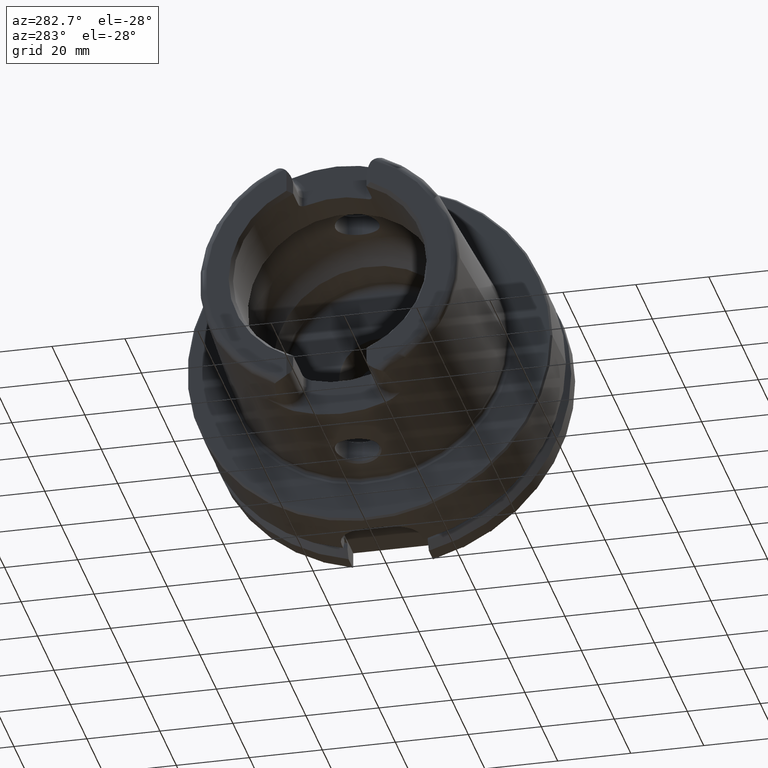
[diagram: clean part render]
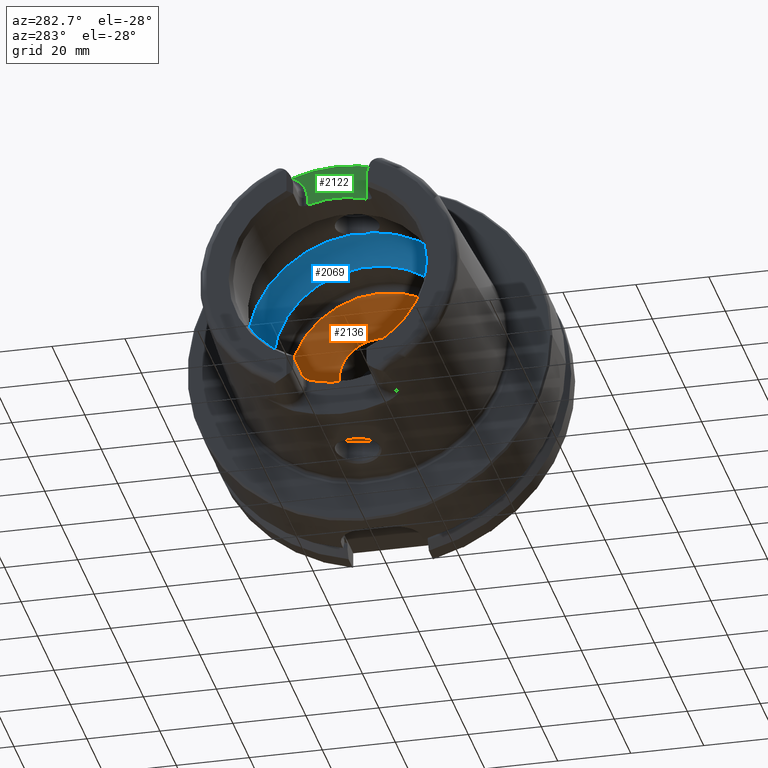
[diagram: same view with three faces highlighted in distinct colors, each labeled with its STEP entity id]
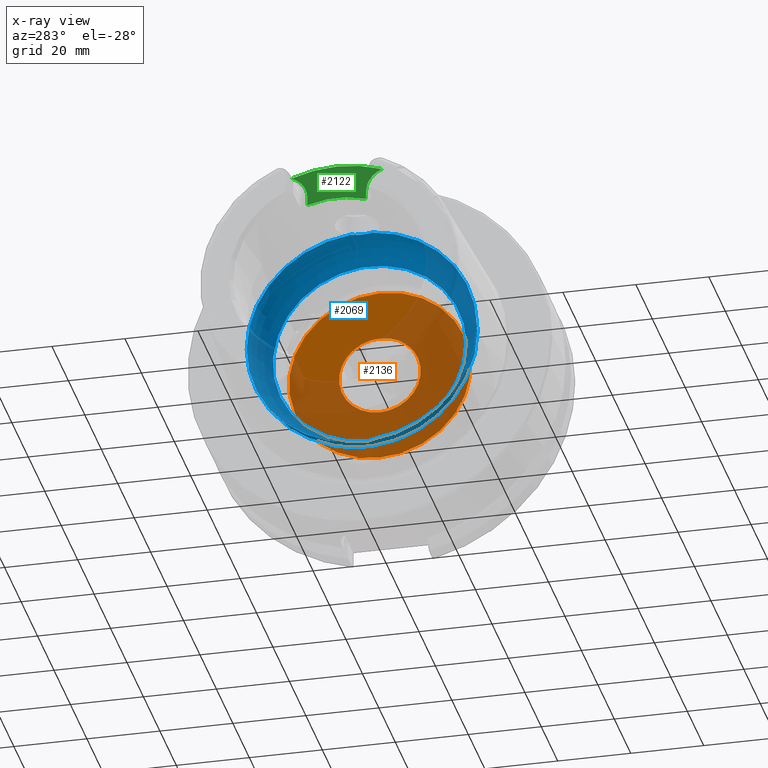
[diagram: x-ray of the same camera — body ghosted, the three highlighted faces saturated]
A machine part, auxiliary view with three faces highlighted in distinct colors.
The next image is the same camera in x-ray (body ghosted, the three faces saturated) — at least one of them is partly hidden behind the body in this view.
Their STEP definitions:

[orange] entity #2136 — the highlighted planar face has unit normal (1, 0, 0).
#97=FACE_BOUND('',#454,.T.);
#134=PLANE('',#2409);
#318=FACE_OUTER_BOUND('',#453,.T.);
#453=EDGE_LOOP('',(#1934));
#454=EDGE_LOOP('',(#1935));
#799=CIRCLE('',#2398,11.188101);
#806=CIRCLE('',#2410,24.9);
#1021=VERTEX_POINT('',#4562);
#1027=VERTEX_POINT('',#4582);
#1328=EDGE_CURVE('',#1021,#1021,#799,.T.);
#1337=EDGE_CURVE('',#1027,#1027,#806,.T.);
#1934=ORIENTED_EDGE('',*,*,#1337,.T.);
#1935=ORIENTED_EDGE('',*,*,#1328,.T.);
#2136=ADVANCED_FACE('',(#318,#97),#134,.F.);
#2398=AXIS2_PLACEMENT_3D('',#4563,#2991,#2992);
#2409=AXIS2_PLACEMENT_3D('',#4581,#3015,#3016);
#2410=AXIS2_PLACEMENT_3D('',#4583,#3017,#3018);
#2991=DIRECTION('center_axis',(1.,0.,0.));
#2992=DIRECTION('ref_axis',(0.,0.,1.));
#3015=DIRECTION('center_axis',(1.,0.,0.));
#3016=DIRECTION('ref_axis',(0.,0.,-1.));
#3017=DIRECTION('center_axis',(-1.,0.,0.));
#3018=DIRECTION('ref_axis',(0.,0.,1.));
#4562=CARTESIAN_POINT('',(12.5,-1.37014720781873E-15,-11.188101));
#4563=CARTESIAN_POINT('Origin',(12.5,0.,0.));
#4581=CARTESIAN_POINT('Origin',(12.5,24.9,0.));
#4582=CARTESIAN_POINT('',(12.5,-3.04937052987691E-15,-24.9));
#4583=CARTESIAN_POINT('Origin',(12.5,0.,0.));

[blue] entity #2069 — the highlighted toroidal blend (fillet) surface has major radius 19.5 mm and minor (blend) radius 12 mm.
#48=B_SPLINE_CURVE_WITH_KNOTS('',3,(#3683,#3684,#3685,#3686,#3687,#3688,
#3689,#3690,#3691,#3692),.UNSPECIFIED.,.F.,.F.,(4,2,2,2,4),(-0.606113644645353,
-0.532141714710631,-0.407956541554012,-0.344441109025195,-0.303157612487306),
 .UNSPECIFIED.);
#50=B_SPLINE_CURVE_WITH_KNOTS('',3,(#3725,#3726,#3727,#3728,#3729,#3730,
#3731,#3732,#3733,#3734),.UNSPECIFIED.,.F.,.F.,(4,2,2,2,4),(-0.303157612487306,
-0.297161587155601,-0.247817233363509,-0.174446982686599,0.),
 .UNSPECIFIED.);
#53=B_SPLINE_CURVE_WITH_KNOTS('',3,(#3875,#3876,#3877,#3878,#3879,#3880,
#3881,#3882,#3883,#3884),.UNSPECIFIED.,.F.,.F.,(4,2,2,2,4),(-0.606113644645388,
-0.532141714710621,-0.407956541553997,-0.344441109025146,-0.303157612487227),
 .UNSPECIFIED.);
#55=B_SPLINE_CURVE_WITH_KNOTS('',3,(#3917,#3918,#3919,#3920,#3921,#3922,
#3923,#3924,#3925,#3926),.UNSPECIFIED.,.F.,.F.,(4,2,2,2,4),(-0.303157612487227,
-0.297161587155532,-0.247817233363497,-0.174446982686607,0.),
 .UNSPECIFIED.);
#143=TOROIDAL_SURFACE('',#2278,19.5,12.);
#251=FACE_OUTER_BOUND('',#383,.T.);
#383=EDGE_LOOP('',(#1569,#1570,#1571,#1572,#1573,#1574,#1575,#1576,#1577,
#1578,#1579));
#737=CIRCLE('',#2273,31.5);
#740=CIRCLE('',#2276,31.5);
#741=CIRCLE('',#2277,31.5);
#742=CIRCLE('',#2279,26.5);
#743=CIRCLE('',#2280,26.5);
#744=CIRCLE('',#2281,12.);
#917=VERTEX_POINT('',#3680);
#918=VERTEX_POINT('',#3682);
#919=VERTEX_POINT('',#3693);
#922=VERTEX_POINT('',#3873);
#923=VERTEX_POINT('',#3874);
#924=VERTEX_POINT('',#3885);
#925=VERTEX_POINT('',#3929);
#928=VERTEX_POINT('',#3939);
#929=VERTEX_POINT('',#3940);
#1157=EDGE_CURVE('',#918,#917,#48,.T.);
#1159=EDGE_CURVE('',#917,#919,#50,.T.);
#1163=EDGE_CURVE('',#922,#923,#53,.T.);
#1165=EDGE_CURVE('',#923,#924,#55,.T.);
#1167=EDGE_CURVE('',#925,#922,#737,.T.);
#1171=EDGE_CURVE('',#919,#925,#740,.T.);
#1172=EDGE_CURVE('',#924,#918,#741,.T.);
#1173=EDGE_CURVE('',#928,#929,#742,.T.);
#1174=EDGE_CURVE('',#929,#928,#743,.T.);
#1175=EDGE_CURVE('',#929,#917,#744,.T.);
#1569=ORIENTED_EDGE('',*,*,#1173,.F.);
#1570=ORIENTED_EDGE('',*,*,#1174,.F.);
#1571=ORIENTED_EDGE('',*,*,#1175,.T.);
#1572=ORIENTED_EDGE('',*,*,#1159,.T.);
#1573=ORIENTED_EDGE('',*,*,#1171,.T.);
#1574=ORIENTED_EDGE('',*,*,#1167,.T.);
#1575=ORIENTED_EDGE('',*,*,#1163,.T.);
#1576=ORIENTED_EDGE('',*,*,#1165,.T.);
#1577=ORIENTED_EDGE('',*,*,#1172,.T.);
#1578=ORIENTED_EDGE('',*,*,#1157,.T.);
#1579=ORIENTED_EDGE('',*,*,#1175,.F.);
#2069=ADVANCED_FACE('',(#251),#143,.F.);
#2273=AXIS2_PLACEMENT_3D('',#3930,#2683,#2684);
#2276=AXIS2_PLACEMENT_3D('',#3936,#2690,#2691);
#2277=AXIS2_PLACEMENT_3D('',#3937,#2692,#2693);
#2278=AXIS2_PLACEMENT_3D('',#3938,#2694,#2695);
#2279=AXIS2_PLACEMENT_3D('',#3941,#2696,#2697);
#2280=AXIS2_PLACEMENT_3D('',#3942,#2698,#2699);
#2281=AXIS2_PLACEMENT_3D('',#3943,#2700,#2701);
#2683=DIRECTION('center_axis',(-1.,0.,0.));
#2684=DIRECTION('ref_axis',(0.,0.,1.));
#2690=DIRECTION('center_axis',(-1.,0.,0.));
#2691=DIRECTION('ref_axis',(0.,0.,1.));
#2692=DIRECTION('center_axis',(-1.,0.,0.));
#2693=DIRECTION('ref_axis',(0.,0.,1.));
#2694=DIRECTION('center_axis',(-1.,0.,0.));
#2695=DIRECTION('ref_axis',(0.,0.,1.));
#2696=DIRECTION('center_axis',(-1.,0.,0.));
#2697=DIRECTION('ref_axis',(0.,0.,1.));
#2698=DIRECTION('center_axis',(-1.,0.,0.));
#2699=DIRECTION('ref_axis',(0.,0.,1.));
#2700=DIRECTION('center_axis',(0.,1.,-1.22464679914735E-16));
#2701=DIRECTION('ref_axis',(0.,-1.22464679914735E-16,-1.));
#3680=CARTESIAN_POINT('',(-9.,8.53116613017712E-16,-31.4767398822284));
#3682=CARTESIAN_POINT('',(-9.74679434480896,2.89893607109041,-31.3663222207471));
#3683=CARTESIAN_POINT('Ctrl Pts',(-9.74679434480898,2.89893607109041,-31.3663222207471));
#3684=CARTESIAN_POINT('Ctrl Pts',(-9.62803941549252,2.68373847757038,-31.3862111979079));
#3685=CARTESIAN_POINT('Ctrl Pts',(-9.52250794022164,2.46123932380009,-31.4027818190648));
#3686=CARTESIAN_POINT('Ctrl Pts',(-9.27707880675082,1.84905941644996,-31.4398086116956));
#3687=CARTESIAN_POINT('Ctrl Pts',(-9.16318715371328,1.45014848778478,-31.4552463037839));
#3688=CARTESIAN_POINT('Ctrl Pts',(-9.05448554629564,0.83406948853474,-31.4697090180031));
#3689=CARTESIAN_POINT('Ctrl Pts',(-9.02875508102837,0.623753972628784,-31.4730355369691));
#3690=CARTESIAN_POINT('Ctrl Pts',(-9.00473516300901,0.275210595137741,-31.4761342948647));
#3691=CARTESIAN_POINT('Ctrl Pts',(-9.,0.13762179988616,-31.4767398822284));
#3692=CARTESIAN_POINT('Ctrl Pts',(-9.,9.71445146547012E-16,-31.4767398822284));
#3693=CARTESIAN_POINT('',(-9.74679434480896,-2.89893607109041,-31.3663222207471));
#3725=CARTESIAN_POINT('Ctrl Pts',(-9.,9.83483832277069E-16,-31.4767398822284));
#3726=CARTESIAN_POINT('Ctrl Pts',(-9.,-0.0199882245331354,-31.4767398822284));
#3727=CARTESIAN_POINT('Ctrl Pts',(-9.00009988237686,-0.0399771452902417,
-31.4767270717783));
#3728=CARTESIAN_POINT('Ctrl Pts',(-9.00194380057016,-0.224464346212316,
-31.4764905359115));
#3729=CARTESIAN_POINT('Ctrl Pts',(-9.01035297969853,-0.388827878343727,
-31.4754151841588));
#3730=CARTESIAN_POINT('Ctrl Pts',(-9.0480310904853,-0.796171644009328,-31.4705320701686));
#3731=CARTESIAN_POINT('Ctrl Pts',(-9.08543037238412,-1.03809779370842,-31.4656619259797));
#3732=CARTESIAN_POINT('Ctrl Pts',(-9.26119500081336,-1.84501079512327,-31.441850680052));
#3733=CARTESIAN_POINT('Ctrl Pts',(-9.4667592962906,-2.39148034786879,-31.4132222586341));
#3734=CARTESIAN_POINT('Ctrl Pts',(-9.74679434480898,-2.89893607109041,-31.3663222207471));
#3873=CARTESIAN_POINT('',(-9.74679434480896,-2.89893607109042,31.3663222207471));
#3874=CARTESIAN_POINT('',(-8.99999999999999,7.8372767397864E-16,31.4767398822284));
#3875=CARTESIAN_POINT('Ctrl Pts',(-9.74679434480898,-2.89893607109042,31.3663222207471));
#3876=CARTESIAN_POINT('Ctrl Pts',(-9.62803941549257,-2.6837384775705,31.3862111979079));
#3877=CARTESIAN_POINT('Ctrl Pts',(-9.52250794022172,-2.46123932380032,31.4027818190648));
#3878=CARTESIAN_POINT('Ctrl Pts',(-9.27707880675083,-1.84905941645004,31.4398086116956));
#3879=CARTESIAN_POINT('Ctrl Pts',(-9.16318715371328,-1.45014848778485,31.4552463037839));
#3880=CARTESIAN_POINT('Ctrl Pts',(-9.05448554629561,-0.834069488534672,
31.4697090180031));
#3881=CARTESIAN_POINT('Ctrl Pts',(-9.02875508102836,-0.623753972628598,
31.4730355369691));
#3882=CARTESIAN_POINT('Ctrl Pts',(-9.00473516300902,-0.275210595137865,
31.4761342948647));
#3883=CARTESIAN_POINT('Ctrl Pts',(-8.99999999999999,-0.137621799886392,
31.4767398822284));
#3884=CARTESIAN_POINT('Ctrl Pts',(-8.99999999999999,9.0205620750794E-16,
31.4767398822284));
#3885=CARTESIAN_POINT('',(-9.74679434480896,2.89893607109042,31.3663222207471));
#3917=CARTESIAN_POINT('Ctrl Pts',(-8.99999999999999,8.7920239009422E-16,
31.4767398822284));
#3918=CARTESIAN_POINT('Ctrl Pts',(-8.99999999999999,0.0199882245331231,
31.4767398822284));
#3919=CARTESIAN_POINT('Ctrl Pts',(-9.00009988237684,0.0399771452902225,
31.4767270717783));
#3920=CARTESIAN_POINT('Ctrl Pts',(-9.00194380057014,0.224464346212396,31.4764905359115));
#3921=CARTESIAN_POINT('Ctrl Pts',(-9.01035297969852,0.388827878343765,31.4754151841588));
#3922=CARTESIAN_POINT('Ctrl Pts',(-9.0480310904853,0.79617164400948,31.4705320701686));
#3923=CARTESIAN_POINT('Ctrl Pts',(-9.08543037238414,1.03809779370849,31.4656619259797));
#3924=CARTESIAN_POINT('Ctrl Pts',(-9.26119500081334,1.84501079512323,31.441850680052));
#3925=CARTESIAN_POINT('Ctrl Pts',(-9.46675929629059,2.39148034786878,31.4132222586341));
#3926=CARTESIAN_POINT('Ctrl Pts',(-9.74679434480898,2.89893607109043,31.3663222207471));
#3929=CARTESIAN_POINT('',(-9.74679434480896,-31.5,3.85763741731416E-15));
#3930=CARTESIAN_POINT('Origin',(-9.74679434480896,0.,0.));
#3936=CARTESIAN_POINT('Origin',(-9.74679434480896,0.,0.));
#3937=CARTESIAN_POINT('Origin',(-9.74679434480896,0.,0.));
#3938=CARTESIAN_POINT('Origin',(-9.74679434480896,0.,0.));
#3939=CARTESIAN_POINT('',(0.,-26.5,3.24531401774049E-15));
#3940=CARTESIAN_POINT('',(0.,-3.24531401774049E-15,-26.5));
#3941=CARTESIAN_POINT('Origin',(0.,0.,0.));
#3942=CARTESIAN_POINT('Origin',(0.,0.,0.));
#3943=CARTESIAN_POINT('Origin',(-9.74679434480896,-2.38806125833734E-15,
-19.5));

[green] entity #2122 — the highlighted planar face has unit normal (-1, 0, 0).
#129=PLANE('',#2381);
#304=FACE_OUTER_BOUND('',#437,.T.);
#437=EDGE_LOOP('',(#1858,#1859,#1860,#1861,#1862,#1863));
#560=LINE('',#4440,#667);
#561=LINE('',#4469,#668);
#667=VECTOR('',#2889,10.);
#668=VECTOR('',#2902,10.);
#735=CIRCLE('',#2268,36.003493987976);
#778=CIRCLE('',#2354,6.88);
#780=CIRCLE('',#2357,6.88);
#792=CIRCLE('',#2382,26.5);
#914=VERTEX_POINT('',#3618);
#915=VERTEX_POINT('',#3635);
#1006=VERTEX_POINT('',#4437);
#1007=VERTEX_POINT('',#4439);
#1008=VERTEX_POINT('',#4454);
#1009=VERTEX_POINT('',#4458);
#1152=EDGE_CURVE('',#914,#915,#735,.T.);
#1290=EDGE_CURVE('',#1006,#1007,#560,.T.);
#1292=EDGE_CURVE('',#915,#1006,#778,.T.);
#1294=EDGE_CURVE('',#1008,#914,#780,.T.);
#1296=EDGE_CURVE('',#1009,#1008,#561,.T.);
#1317=EDGE_CURVE('',#1007,#1009,#792,.T.);
#1858=ORIENTED_EDGE('',*,*,#1292,.F.);
#1859=ORIENTED_EDGE('',*,*,#1152,.F.);
#1860=ORIENTED_EDGE('',*,*,#1294,.F.);
#1861=ORIENTED_EDGE('',*,*,#1296,.F.);
#1862=ORIENTED_EDGE('',*,*,#1317,.F.);
#1863=ORIENTED_EDGE('',*,*,#1290,.F.);
#2122=ADVANCED_FACE('',(#304),#129,.T.);
#2268=AXIS2_PLACEMENT_3D('',#3636,#2670,#2671);
#2354=AXIS2_PLACEMENT_3D('',#4452,#2892,#2893);
#2357=AXIS2_PLACEMENT_3D('',#4456,#2898,#2899);
#2381=AXIS2_PLACEMENT_3D('',#4527,#2954,#2955);
#2382=AXIS2_PLACEMENT_3D('',#4528,#2956,#2957);
#2670=DIRECTION('center_axis',(1.,0.,0.));
#2671=DIRECTION('ref_axis',(0.,1.,0.));
#2889=DIRECTION('',(0.,0.,-1.));
#2892=DIRECTION('center_axis',(-1.,0.,0.));
#2893=DIRECTION('ref_axis',(0.,0.564947834751706,0.82512662301574));
#2898=DIRECTION('center_axis',(-1.,0.,0.));
#2899=DIRECTION('ref_axis',(0.,-0.564947834751705,0.825126623015741));
#2902=DIRECTION('',(0.,0.,1.));
#2954=DIRECTION('center_axis',(-1.,0.,0.));
#2955=DIRECTION('ref_axis',(0.,0.,1.));
#2956=DIRECTION('center_axis',(-1.,0.,0.));
#2957=DIRECTION('ref_axis',(0.,1.,0.));
#3618=CARTESIAN_POINT('',(-40.,12.4227760464511,33.7923987701664));
#3635=CARTESIAN_POINT('',(-40.,-12.4227760464511,33.7923987701664));
#3636=CARTESIAN_POINT('Origin',(-40.,0.,0.));
#4437=CARTESIAN_POINT('',(-40.,-8.01,27.37));
#4439=CARTESIAN_POINT('',(-40.,-8.01,25.2604414054862));
#4440=CARTESIAN_POINT('',(-40.,-8.01,23.5));
#4452=CARTESIAN_POINT('Origin',(-40.,-14.89,27.37));
#4454=CARTESIAN_POINT('',(-40.,8.01,27.37));
#4456=CARTESIAN_POINT('Origin',(-40.,14.89,27.37));
#4458=CARTESIAN_POINT('',(-40.,8.01,25.2604414054862));
#4469=CARTESIAN_POINT('',(-40.,8.01,28.185));
#4527=CARTESIAN_POINT('Origin',(-40.,0.,29.));
#4528=CARTESIAN_POINT('Origin',(-40.,0.,0.));